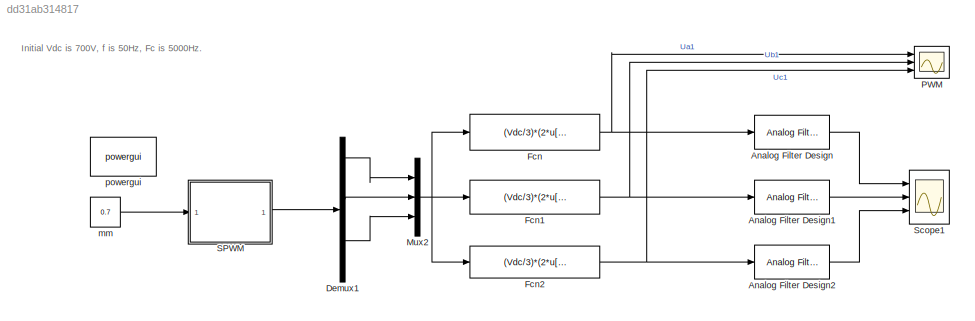
MODEL slx_dd31ab314817
KIND model
CONFIG AbsTol = auto
CONFIG EnableMultiTasking = on
CONFIG FixedStep = auto
CONFIG InitFcn = f=50;\nMf=100;\nFc=f*Mf;\nVdc=500;\nT_dead=11e-6;
CONFIG MaxStep = 0.00001
CONFIG MinStep = auto
CONFIG RelTol = 1e-3
CONFIG SampleTimeConstraint = Unconstrained
CONFIG Solver = ode23tb
CONFIG SolverName = ode23tb
CONFIG StartTime = 0.0
CONFIG StopTime = 0.1
BLOCK [Reference] Analog Filter Design  REF=dsparch4/Analog
Filter Design
  Ports = [1, 1]
  SourceBlock = dsparch4/Analog\nFilter Design
  SourceProductBaseCode = DS
  SourceType = Analog Filter Design
BLOCK [Reference] Analog Filter Design1  REF=dsparch4/Analog
Filter Design
  Ports = [1, 1]
  SourceBlock = dsparch4/Analog\nFilter Design
  SourceProductBaseCode = DS
  SourceType = Analog Filter Design
BLOCK [Reference] Analog Filter Design2  REF=dsparch4/Analog
Filter Design
  Ports = [1, 1]
  SourceBlock = dsparch4/Analog\nFilter Design
  SourceProductBaseCode = DS
  SourceType = Analog Filter Design
BLOCK [Demux] Demux1
  Outputs = 6
  Ports = [1, 6]
BLOCK [Fcn] Fcn
  Expr = (Vdc/3)*(2*u[1]-u[2]-u[3])
BLOCK [Fcn] Fcn1
  Expr = (Vdc/3)*(2*u[2]-u[1]-u[3])
BLOCK [Fcn] Fcn2
  Expr = (Vdc/3)*(2*u[3]-u[2]-u[1])
BLOCK [Mux] Mux2
  DisplayOption = bar
  Inputs = 3
  Ports = [3, 1]
BLOCK [Scope] PWM
  Floating = off
  NumInputPorts = 3
  Ports = [3]
  ScopeSpecificationString = Simulink.scopes.TimeScopeBlockCfg('CurrentConfiguration', extmgr.ConfigurationSet(extmgr.Configuration('Core','General UI',true,'FigureColor',[1 1 1]),extmgr.Configuration('Core','Source UI',true),extmgr.Configuration('Sources','WiredSimulink',true,'DataLogging',true,'DataLoggingVariableName','Ua1','DataLoggingSaveFormat','StructureWithTime','SampleTime','0','DataLoggingDecimation','1','DataLoggin...<+3964ch>
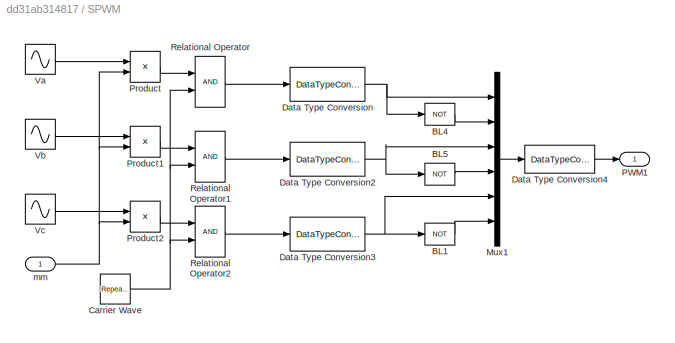
BLOCK [SubSystem] SPWM
  Ports = [1, 1]
  RequestExecContextInheritance = off
BLOCK [Logic] SPWM/BL1
  Inputs = 1
  NameLocation = top
  Operator = NOT
  Ports = [1, 1]
BLOCK [Logic] SPWM/BL4
  Inputs = 1
  NameLocation = top
  Operator = NOT
  Ports = [1, 1]
BLOCK [Logic] SPWM/BL5
  Inputs = 1
  NameLocation = top
  Operator = NOT
  Ports = [1, 1]
BLOCK [Reference] SPWM/Carrier Wave  REF=simulink/Sources/Repeating
Sequence
  Ports = [0, 1]
  SourceBlock = simulink/Sources/Repeating\nSequence
  SourceProductBaseCode = SL
  SourceType = Repeating table
BLOCK [DataTypeConversion] SPWM/Data Type Conversion
  OutDataTypeStr = boolean
BLOCK [DataTypeConversion] SPWM/Data Type Conversion2
  OutDataTypeStr = boolean
BLOCK [DataTypeConversion] SPWM/Data Type Conversion3
  OutDataTypeStr = boolean
BLOCK [DataTypeConversion] SPWM/Data Type Conversion4
  OutDataTypeStr = double
BLOCK [Mux] SPWM/Mux1
  DisplayOption = bar
  Inputs = 6
  Ports = [6, 1]
BLOCK [Outport] SPWM/PWM1
BLOCK [Product] SPWM/Product
  Ports = [2, 1]
BLOCK [Product] SPWM/Product1
  Ports = [2, 1]
BLOCK [Product] SPWM/Product2
  Ports = [2, 1]
BLOCK [RelationalOperator] SPWM/Relational Operator
  Ports = [2, 1]
BLOCK [RelationalOperator] SPWM/Relational Operator1
  Ports = [2, 1]
BLOCK [RelationalOperator] SPWM/Relational Operator2
  Ports = [2, 1]
BLOCK [Sin] SPWM/Va
  Frequency = 2*pi*f
  Ports = [0, 1]
  SampleTime = 0
BLOCK [Sin] SPWM/Vb
  Frequency = 2*pi*f
  Phase = -2*pi/3
  Ports = [0, 1]
  SampleTime = 0
BLOCK [Sin] SPWM/Vc
  Frequency = 2*pi*f
  Phase = -4*pi/3
  Ports = [0, 1]
  SampleTime = 0
BLOCK [Inport] SPWM/mm
BLOCK [Scope] Scope1
  Floating = off
  NumInputPorts = 3
  Ports = [3]
  ScopeSpecificationString = Simulink.scopes.TimeScopeBlockCfg('CurrentConfiguration', extmgr.ConfigurationSet(extmgr.Configuration('Core','General UI',true,'FigureColor',[1 1 1]),extmgr.Configuration('Core','Source UI',true),extmgr.Configuration('Sources','WiredSimulink',true,'DataLoggingVariableName','ScopeData1'),extmgr.Configuration('Visuals','Time Domain',true,'SerializedDisplays',{struct('MinYLimReal','-235.36008','MaxY...<+1555ch>
BLOCK [Constant] mm
  Value = 0.7
BLOCK [Reference] powergui  REF=powerlib/powergui
  Ports = []
  Priority = 1
  SourceBlock = powerlib/powergui
  SourceProductBaseCode = PS
  SourceType = PSB option menu block
ANNOTATION (root): Initial Vdc is 700V, f is 50Hz, Fc is 5000Hz.
LINE Analog Filter Design1:1 -> Scope1:2
LINE Analog Filter Design2:1 -> Scope1:3
LINE Analog Filter Design:1 -> Scope1:1
LINE Demux1:1 -> Mux2:1
LINE Demux1:3 -> Mux2:2
LINE Demux1:5 -> Mux2:3
NET Fcn1:1 -> Analog Filter Design1:1, PWM:2
NET Fcn2:1 -> Analog Filter Design2:1, PWM:3
NET Fcn:1 -> Analog Filter Design:1, PWM:1
NET Mux2:1 -> Fcn1:1, Fcn2:1, Fcn:1
LINE SPWM/BL1:1 -> SPWM/Mux1:6
LINE SPWM/BL4:1 -> SPWM/Mux1:2
LINE SPWM/BL5:1 -> SPWM/Mux1:4
NET SPWM/Carrier Wave:1 -> SPWM/Relational Operator1:2, SPWM/Relational Operator2:2, SPWM/Relational Operator:2
NET SPWM/Data Type Conversion2:1 -> SPWM/BL5:1, SPWM/Mux1:3
NET SPWM/Data Type Conversion3:1 -> SPWM/BL1:1, SPWM/Mux1:5
LINE SPWM/Data Type Conversion4:1 -> SPWM/PWM1:1
NET SPWM/Data Type Conversion:1 -> SPWM/BL4:1, SPWM/Mux1:1
LINE SPWM/Mux1:1 -> SPWM/Data Type Conversion4:1
LINE SPWM/Product1:1 -> SPWM/Relational Operator1:1
LINE SPWM/Product2:1 -> SPWM/Relational Operator2:1
LINE SPWM/Product:1 -> SPWM/Relational Operator:1
LINE SPWM/Relational Operator1:1 -> SPWM/Data Type Conversion2:1
LINE SPWM/Relational Operator2:1 -> SPWM/Data Type Conversion3:1
LINE SPWM/Relational Operator:1 -> SPWM/Data Type Conversion:1
LINE SPWM/Va:1 -> SPWM/Product:1
LINE SPWM/Vb:1 -> SPWM/Product1:1
LINE SPWM/Vc:1 -> SPWM/Product2:1
NET SPWM/mm:1 -> SPWM/Product1:2, SPWM/Product2:2, SPWM/Product:2
LINE SPWM:1 -> Demux1:1
LINE mm:1 -> SPWM:1
note: NET lines group one-source signal fan-out (src -> all destinations, sorted); 1:1 wires keep LINE
